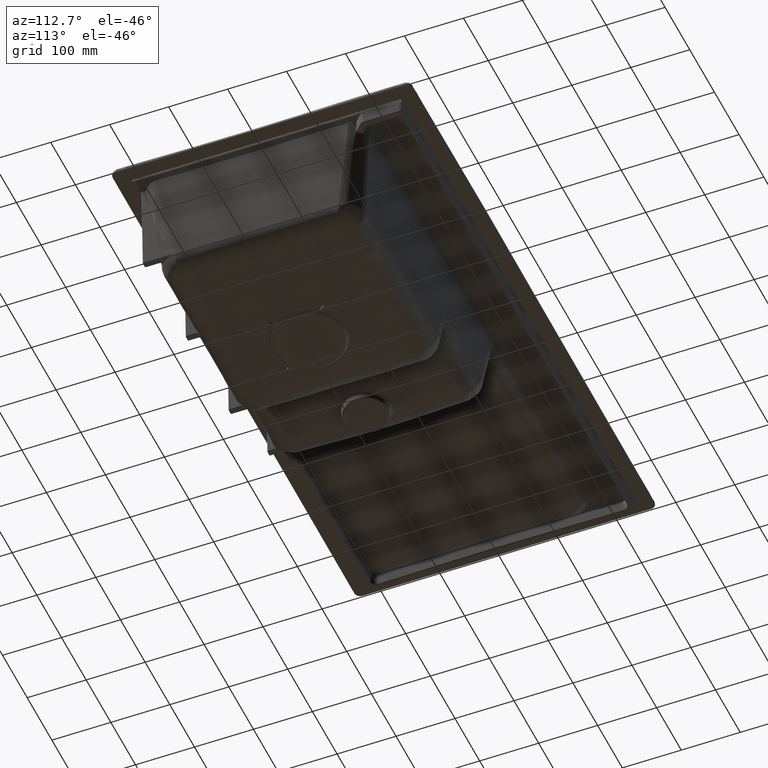
[diagram: clean part render]
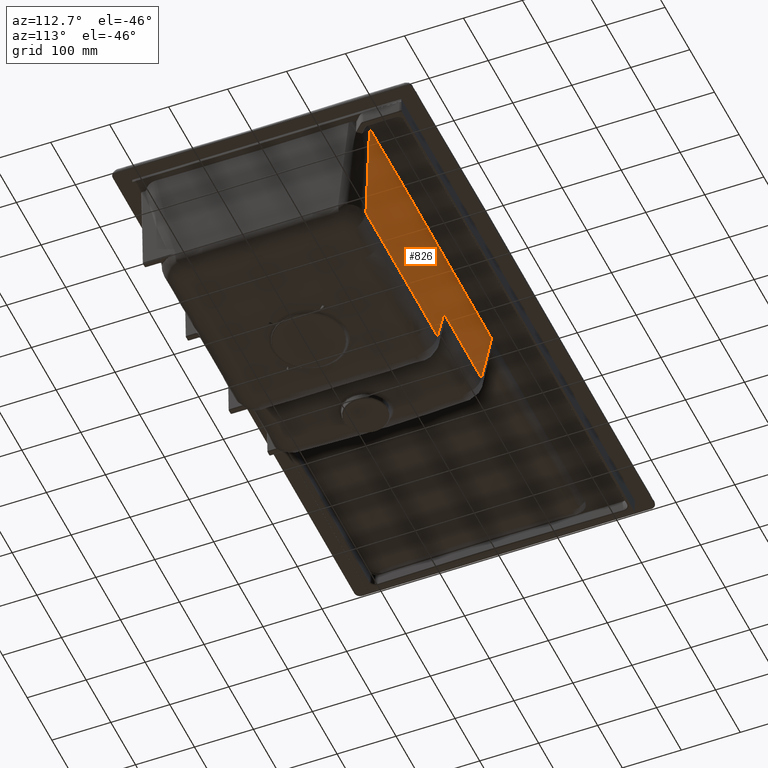
[diagram: same view with one face highlighted and labeled with its STEP entity id]
A machine part, auxiliary view. The second image highlights one B-rep face of the part: STEP entity #826.
In plain terms, the highlighted face is a freeform B-spline surface patch.
Its self-contained STEP definition (entity closure, byte-faithful):
#826=ADVANCED_FACE('',(#1334),#1063,.F.);
#1063=B_SPLINE_SURFACE_WITH_KNOTS('',3,3,((#23734,#23735,#23736,#23737),
(#23738,#23739,#23740,#23741),(#23742,#23743,#23744,#23745),(#23746,#23747,
#23748,#23749),(#23750,#23751,#23752,#23753),(#23754,#23755,#23756,#23757),
(#23758,#23759,#23760,#23761),(#23762,#23763,#23764,#23765)),
 .UNSPECIFIED.,.F.,.F.,.F.,(4,2,2,4),(4,4),(0.,0.209493333333333,0.342826666666667,
1.),(0.,1.),.UNSPECIFIED.);
#1334=FACE_OUTER_BOUND('',#1745,.T.);
#1745=EDGE_LOOP('',(#3106,#3107,#3108,#3109,#3110,#3111,#3112,#3113,#3114,
#3115));
#3106=ORIENTED_EDGE('',*,*,#4980,.T.);
#3107=ORIENTED_EDGE('',*,*,#5101,.F.);
#3108=ORIENTED_EDGE('',*,*,#5103,.F.);
#3109=ORIENTED_EDGE('',*,*,#4976,.T.);
#3110=ORIENTED_EDGE('',*,*,#4972,.T.);
#3111=ORIENTED_EDGE('',*,*,#4971,.T.);
#3112=ORIENTED_EDGE('',*,*,#4968,.T.);
#3113=ORIENTED_EDGE('',*,*,#4967,.T.);
#3114=ORIENTED_EDGE('',*,*,#4966,.T.);
#3115=ORIENTED_EDGE('',*,*,#5025,.T.);
#4114=VERTEX_POINT('',#16717);
#4157=VERTEX_POINT('',#18868);
#4198=VERTEX_POINT('',#20130);
#4200=VERTEX_POINT('',#20156);
#4201=VERTEX_POINT('',#20223);
#4202=VERTEX_POINT('',#20292);
#4204=VERTEX_POINT('',#20378);
#4207=VERTEX_POINT('',#20479);
#4208=VERTEX_POINT('',#20484);
#4285=VERTEX_POINT('',#23689);
#4966=EDGE_CURVE('',#4198,#4157,#5812,.T.);
#4967=EDGE_CURVE('',#4200,#4198,#5813,.T.);
#4968=EDGE_CURVE('',#4114,#4200,#5814,.T.);
#4971=EDGE_CURVE('',#4201,#4114,#5817,.T.);
#4972=EDGE_CURVE('',#4202,#4201,#5818,.T.);
#4976=EDGE_CURVE('',#4204,#4202,#5822,.T.);
#4980=EDGE_CURVE('',#4208,#4207,#5826,.T.);
#5025=EDGE_CURVE('',#4157,#4208,#5867,.T.);
#5101=EDGE_CURVE('',#4285,#4207,#5925,.T.);
#5103=EDGE_CURVE('',#4204,#4285,#5927,.T.);
#5812=B_SPLINE_CURVE_WITH_KNOTS('',3,(#20136,#20137,#20138,#20139),
 .UNSPECIFIED.,.F.,.F.,(4,4),(0.,1.),.UNSPECIFIED.);
#5813=B_SPLINE_CURVE_WITH_KNOTS('',3,(#20152,#20153,#20154,#20155),
 .UNSPECIFIED.,.F.,.F.,(4,4),(0.,1.),.UNSPECIFIED.);
#5814=B_SPLINE_CURVE_WITH_KNOTS('',3,(#20157,#20158,#20159,#20160),
 .UNSPECIFIED.,.F.,.F.,(4,4),(0.,1.),.UNSPECIFIED.);
#5817=B_SPLINE_CURVE_WITH_KNOTS('',3,(#20224,#20225,#20226,#20227),
 .UNSPECIFIED.,.F.,.F.,(4,4),(0.,1.),.UNSPECIFIED.);
#5818=B_SPLINE_CURVE_WITH_KNOTS('',3,(#20288,#20289,#20290,#20291),
 .UNSPECIFIED.,.F.,.F.,(4,4),(0.,1.),.UNSPECIFIED.);
#5822=B_SPLINE_CURVE_WITH_KNOTS('',3,(#20383,#20384,#20385,#20386),
 .UNSPECIFIED.,.F.,.F.,(4,4),(0.,1.),.UNSPECIFIED.);
#5826=B_SPLINE_CURVE_WITH_KNOTS('',3,(#20480,#20481,#20482,#20483),
 .UNSPECIFIED.,.F.,.F.,(4,4),(0.,1.),.UNSPECIFIED.);
#5867=B_SPLINE_CURVE_WITH_KNOTS('',3,(#21936,#21937,#21938,#21939),
 .UNSPECIFIED.,.F.,.F.,(4,4),(0.,1.),.UNSPECIFIED.);
#5925=B_SPLINE_CURVE_WITH_KNOTS('',3,(#23685,#23686,#23687,#23688),
 .UNSPECIFIED.,.F.,.F.,(4,4),(0.,1.),.UNSPECIFIED.);
#5927=B_SPLINE_CURVE_WITH_KNOTS('',3,(#23730,#23731,#23732,#23733),
 .UNSPECIFIED.,.F.,.F.,(4,4),(0.,1.),.UNSPECIFIED.);
#16717=CARTESIAN_POINT('',(123.006617377858,172.817350068392,-174.754508553241));
#18868=CARTESIAN_POINT('',(-39.9308700818286,179.009532197431,-116.053081789184));
#20130=CARTESIAN_POINT('',(110.329593645763,179.384215252873,-116.184193979646));
#20136=CARTESIAN_POINT('',(110.329521963655,179.432858295686,-116.189692201883));
#20137=CARTESIAN_POINT('',(60.2453279058458,179.363493341813,-116.150461946935));
#20138=CARTESIAN_POINT('',(10.159470369516,179.228178823088,-116.100444295901));
#20139=CARTESIAN_POINT('',(-39.9309355951875,179.025327875789,-116.05477877628));
#20152=CARTESIAN_POINT('',(112.748663968852,179.437074185982,-116.183471405915));
#20153=CARTESIAN_POINT('',(111.942283675271,179.435669731027,-116.185690473138));
#20154=CARTESIAN_POINT('',(111.135902993163,179.434248289659,-116.187906886934));
#20155=CARTESIAN_POINT('',(110.329521910774,179.432809860949,-116.190120709506));
#20156=CARTESIAN_POINT('',(112.748664336252,179.436838376896,-116.183878903622));
#20157=CARTESIAN_POINT('',(123.0066167253,172.817411748932,-174.754515649834));
#20158=CARTESIAN_POINT('',(119.588243475943,175.026840984696,-155.236772493086));
#20159=CARTESIAN_POINT('',(116.16893080536,177.233614014797,-135.713228877066));
#20160=CARTESIAN_POINT('',(112.748664239725,179.437025713916,-116.183900076212));
#20223=CARTESIAN_POINT('',(160.542820425798,172.82482314737,-174.760759511703));
#20224=CARTESIAN_POINT('',(160.542820418645,172.824876975307,-174.760765631836));
#20225=CARTESIAN_POINT('',(148.030778838055,172.823355526679,-174.759523486979));
#20226=CARTESIAN_POINT('',(135.518714912365,172.820876952777,-174.75742064538));
#20227=CARTESIAN_POINT('',(123.006617364421,172.817411335842,-174.754519298999));
#20288=CARTESIAN_POINT('',(350.051464613963,172.773939140903,-174.720280068777));
#20289=CARTESIAN_POINT('',(286.880644497281,172.817801149749,-174.780758423989));
#20290=CARTESIAN_POINT('',(223.711908793879,172.83051112846,-174.785041548956));
#20291=CARTESIAN_POINT('',(160.542820418645,172.824876975307,-174.760765631837));
#20292=CARTESIAN_POINT('',(350.051464615018,172.773939904565,-174.720280176872));
#20378=CARTESIAN_POINT('',(413.102754615279,172.719490357418,-174.673778259141));
#20383=CARTESIAN_POINT('',(413.10275448836,172.719356010674,-174.673768721583));
#20384=CARTESIAN_POINT('',(392.087183024245,172.737441445853,-174.698677086657));
#20385=CARTESIAN_POINT('',(371.069697069393,172.757767266849,-174.714398698421));
#20386=CARTESIAN_POINT('',(350.051464614024,172.773939140903,-174.720280068777));
#20479=CARTESIAN_POINT('',(312.534648193334,190.58052069035,-16.2062203356356));
#20480=CARTESIAN_POINT('',(-56.1213985893792,189.618623570584,-16.2043294195071));
#20481=CARTESIAN_POINT('',(66.7600786807122,190.848866153814,-16.1984524112289));
#20482=CARTESIAN_POINT('',(189.648465708596,191.217895477106,-16.207023370736));
#20483=CARTESIAN_POINT('',(312.534648126148,190.58050759256,-16.2063590499509));
#20484=CARTESIAN_POINT('',(-56.121201464019,189.59894964429,-16.2076225159858));
#21936=CARTESIAN_POINT('',(-39.932325820992,179.025322317119,-116.054776846227));
#21937=CARTESIAN_POINT('',(-44.9221142684365,182.220590082828,-86.1835844732858));
#21938=CARTESIAN_POINT('',(-50.3176477807911,185.757476643975,-52.9048719786072));
#21939=CARTESIAN_POINT('',(-56.1209516843997,189.617716124807,-16.2128688434098));
#23685=CARTESIAN_POINT('',(438.321241343085,189.591191575129,-15.4812208072839));
#23686=CARTESIAN_POINT('',(396.395246832533,189.907217718675,-16.0926153999048));
#23687=CARTESIAN_POINT('',(354.465484369789,190.363114672043,-16.2052863509458));
#23688=CARTESIAN_POINT('',(312.534648284215,190.580538724703,-16.2060815231275));
#23689=CARTESIAN_POINT('',(438.321252336197,189.590989571023,-15.4820790676626));
#23730=CARTESIAN_POINT('',(413.102755958217,172.719626248032,-174.673782256726));
#23731=CARTESIAN_POINT('',(420.71343128778,177.689726239323,-128.371440749542));
#23732=CARTESIAN_POINT('',(429.117488178612,183.321662076203,-75.3379065685765));
#23733=CARTESIAN_POINT('',(438.32107788098,189.591053349928,-15.4829312252865));
#23734=CARTESIAN_POINT('',(491.814506299484,196.955684437209,58.9134246044325));
#23735=CARTESIAN_POINT('',(491.720397701932,187.096419629444,-35.8738381000274));
#23736=CARTESIAN_POINT('',(491.626327630361,177.237425546032,-130.661129570643));
#23737=CARTESIAN_POINT('',(491.532266419748,167.378703625771,-225.448449931216));
#23738=CARTESIAN_POINT('',(445.410408569798,197.059500327841,57.2527561831286));
#23739=CARTESIAN_POINT('',(445.242647326347,187.151191834777,-37.0059500044984));
#23740=CARTESIAN_POINT('',(445.074837714598,177.242060273842,-131.264570459632));
#23741=CARTESIAN_POINT('',(444.907024646688,167.332104423284,-225.523105097081));
#23742=CARTESIAN_POINT('',(398.786167510991,197.873302133555,56.6445389994517));
#23743=CARTESIAN_POINT('',(398.62787034503,187.645398638649,-37.4955991616742));
#23744=CARTESIAN_POINT('',(398.469520219502,177.416821351761,-131.635663437698));
#23745=CARTESIAN_POINT('',(398.311148303758,167.187568525211,-225.775653660664));
#23746=CARTESIAN_POINT('',(322.399394971505,198.683503399891,56.2985777256047));
#23747=CARTESIAN_POINT('',(322.289793304683,188.130560568503,-37.8799313944588));
#23748=CARTESIAN_POINT('',(322.180171790272,177.57744136573,-132.05842048205));
#23749=CARTESIAN_POINT('',(322.070533419133,167.024145357576,-226.236889489554));
#23750=CARTESIAN_POINT('',(292.696048478026,198.870849267162,56.3197255460877));
#23751=CARTESIAN_POINT('',(292.603386427295,188.240143005553,-37.9294031658341));
#23752=CARTESIAN_POINT('',(292.510710989442,177.609346689325,-132.178521691412));
#23753=CARTESIAN_POINT('',(292.418023663438,166.978460097992,-226.427630006675));
#23754=CARTESIAN_POINT('',(116.649086755921,199.598253960973,56.4941719182706));
#23755=CARTESIAN_POINT('',(116.63483884226,188.652375849989,-38.183915032282));
#23756=CARTESIAN_POINT('',(116.620603184046,177.706656410286,-132.86201985234));
#23757=CARTESIAN_POINT('',(116.606376220154,166.761096033394,-227.540142583656));
#23758=CARTESIAN_POINT('',(-29.6671268226411,198.387472289921,57.0947385481135));
#23759=CARTESIAN_POINT('',(-29.630433829296,187.869925968875,-38.072287058323));
#23760=CARTESIAN_POINT('',(-29.5937325634079,177.352156913239,-133.239286628325));
#23761=CARTESIAN_POINT('',(-29.5570021502202,166.834164609965,-228.406260110869));
#23762=CARTESIAN_POINT('',(-176.1712964662,195.346577692872,56.9821882928555));
#23763=CARTESIAN_POINT('',(-176.012980554103,185.952933318835,-38.3688882348151));
#23764=CARTESIAN_POINT('',(-175.85452898626,176.557671107131,-133.719787192861));
#23765=CARTESIAN_POINT('',(-175.696048803528,167.160786933085,-229.07050808847));